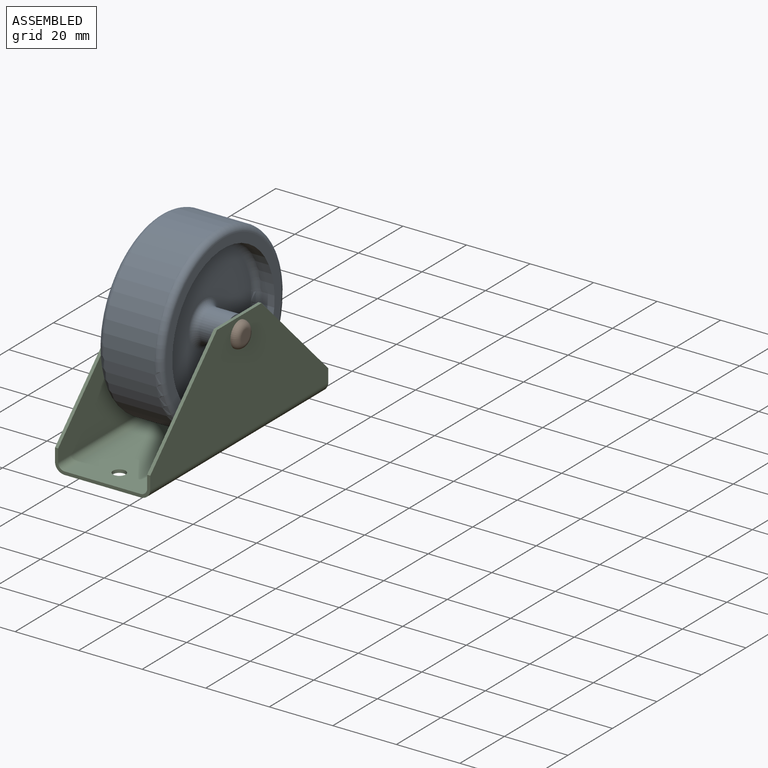
[diagram: assembled view]
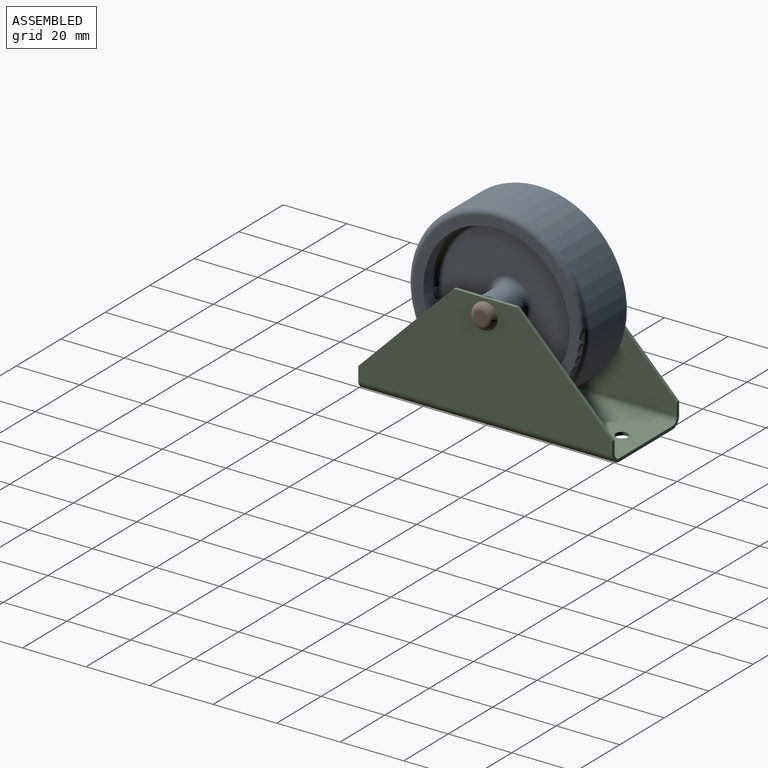
[diagram: assembled view, second angle]
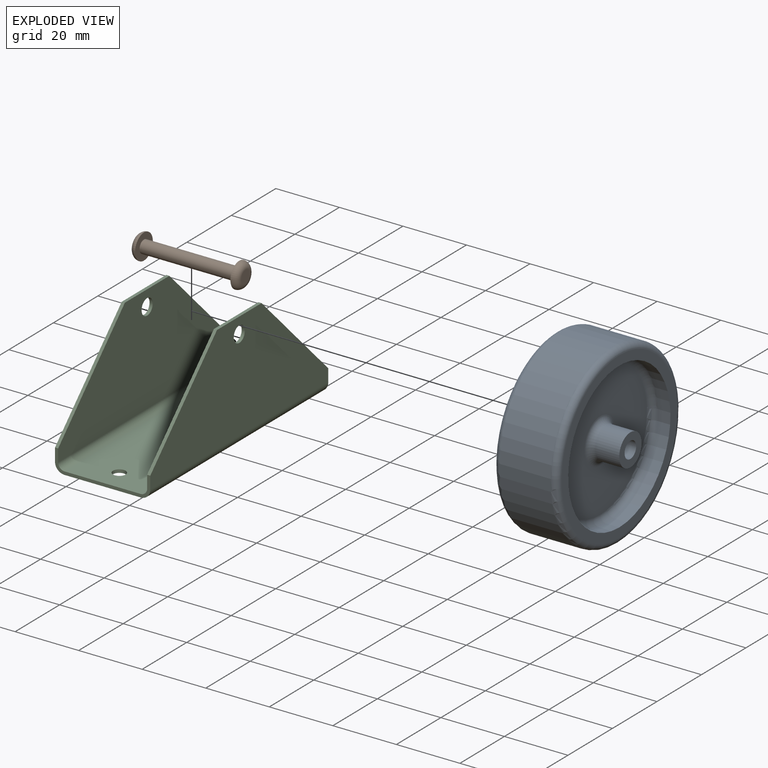
[diagram: exploded view]
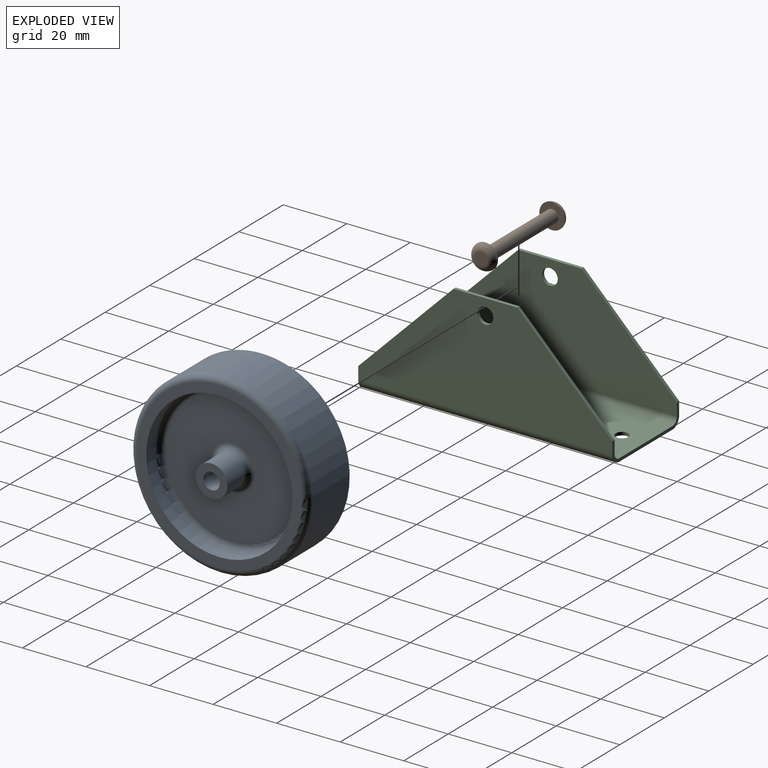
[diagram: exploded view, second angle]
ASSEMBLY  parts=3 mates=2
PART A: 18 faces, bbox 27x60.6x60.6 mm
  f0: cylinder r=28mm len=56mm, axis (1,0,0), area 2814.9mm2, adj f1,f16
  f1: torus R=26mm, axis (1,0,0), area 538.4mm2, adj f0,f2
  f2: plane 52x52mm, normal (-1,0,0), area 461.8mm2, adj f1,f3
  f3: cylinder r=23mm len=46mm, axis (1,0,0), area 578.1mm2, adj f2,f4
  f4: torus R=21mm, axis (1,0,0), area 439.7mm2, adj f3,f5
  f5: plane 42x42mm, normal (-1,0,0), area 1231.5mm2, adj f4,f6
  f6: torus R=7mm, axis (1,0,0), area 113mm2, adj f5,f7
  f7: cylinder r=5mm len=10mm, axis (1,0,0), area 235.6mm2, adj f6,f8
  f8: plane 10x10mm, normal (-1,0,0), area 57.3mm2, adj f7,f17
  f9: plane 10x10mm, normal (1,0,0), area 57.3mm2, adj f10,f17
  f10: cylinder r=5mm len=10mm, axis (1,0,0), area 235.6mm2, adj f9,f11
  f11: torus R=7mm, axis (1,0,0), area 113mm2, adj f10,f12
  f12: plane 42x42mm, normal (1,0,0), area 1231.5mm2, adj f11,f13
  f13: torus R=21mm, axis (1,0,0), area 439.7mm2, adj f12,f14
  f14: cylinder r=23mm len=46mm, axis (1,0,0), area 578.1mm2, adj f13,f15
  f15: plane 52x52mm, normal (1,0,0), area 461.8mm2, adj f14,f16
  f16: torus R=26mm, axis (1,0,0), area 538.4mm2, adj f0,f15
  f17: cylinder r=2.6mm len=27mm, axis (1,0,0), area 441.1mm2, adj f8,f9
PART B: 7 faces, bbox 34x8.7x8.7 mm
  f0: plane 8x8mm, normal (1,0,0), area 37.7mm2, adj f1,f6
  f1: torus R=2mm, axis (-1,0,0), area 64.6mm2, adj f0,f2
  f2: plane 4x4mm, normal (-1,0,0), area 12.6mm2, adj f1
  f3: plane 4x4mm, normal (1,0,0), area 12.6mm2, adj f4
  f4: torus R=2mm, axis (-1,0,0), area 64.6mm2, adj f3,f5
  f5: plane 8x8mm, normal (-1,0,0), area 37.7mm2, adj f4,f6
  f6: cylinder r=2mm len=30mm, axis (-1,0,0), area 377mm2, adj f0,f5
PART C: 30 faces, bbox 30x80x37 mm
  f0: plane 4x1mm, normal (0,1,0), area 4mm2, adj f4,f5,f7,f27
  f1: plane 4x1mm, normal (0,-1,0), area 4mm2, adj f4,f5,f6,f26
  f2: cylinder r=2.5mm len=5mm, axis (1,0,0), area 15.7mm2, adj f4,f5
  f3: plane 20x1mm, normal (0,0,-1), area 20mm2, adj f4,f5,f6,f7
  f4: plane 80x34mm, normal (1,0,0), area 1800.4mm2, adj f0,f1,f2,f3,f6,f7,f29
  f5: plane 80x34mm, normal (-1,0,0), area 1800.4mm2, adj f0,f1,f2,f3,f6,f7,f28
  f6: plane 30x30mm, normal (0,-0.71,-0.71), area 42.4mm2, adj f1,f3,f4,f5
  f7: plane 30x30mm, normal (0,0.71,-0.71), area 42.4mm2, adj f0,f3,f4,f5
  f8: plane 24x1mm, normal (0,1,0), area 24mm2, adj f12,f13,f23,f27
  f9: plane 24x1mm, normal (0,-1,0), area 24mm2, adj f12,f13,f22,f26
  f10: cylinder r=2mm len=4mm, axis (0,0,-1), area 12.6mm2, adj f12,f13
  f11: cylinder r=2mm len=4mm, axis (0,0,-1), area 12.6mm2, adj f12,f13
  f12: plane 80x24mm, normal (0,0,-1), area 1894.9mm2, adj f8,f9,f10,f11,f25,f29
  f13: plane 80x24mm, normal (0,0,1), area 1894.9mm2, adj f8,f9,f10,f11,f24,f28
  f14: plane 4x1mm, normal (0,1,0), area 4mm2, adj f18,f19,f20,f23
  f15: plane 20x1mm, normal (0,0,-1), area 20mm2, adj f18,f19,f20,f21
  f16: plane 4x1mm, normal (0,-1,0), area 4mm2, adj f18,f19,f21,f22
  f17: cylinder r=2.5mm len=5mm, axis (-1,0,0), area 15.7mm2, adj f18,f19
  f18: plane 80x34mm, normal (-1,0,0), area 1800.4mm2, adj f14,f15,f16,f17,f20,f21,f25
  f19: plane 80x34mm, normal (1,0,0), area 1800.4mm2, adj f14,f15,f16,f17,f20,f21,f24
  f20: plane 30x30mm, normal (0,0.71,-0.71), area 42.4mm2, adj f14,f15,f18,f19
  f21: plane 30x30mm, normal (0,-0.71,-0.71), area 42.4mm2, adj f15,f16,f18,f19
  f22: plane 3x3mm, normal (0,-1,0), area 3.9mm2, adj f9,f16,f24,f25
  f23: plane 3x3mm, normal (0,1,0), area 3.9mm2, adj f8,f14,f24,f25
  f24: cylinder r=3mm len=80mm, axis (0,-1,0), area 377mm2, adj f13,f19,f22,f23
  f25: cylinder r=2mm len=80mm, axis (0,-1,0), area 251.3mm2, adj f12,f18,f22,f23
  f26: plane 3x3mm, normal (0,-1,0), area 3.9mm2, adj f1,f9,f28,f29
  f27: plane 3x3mm, normal (0,1,0), area 3.9mm2, adj f0,f8,f28,f29
  f28: cylinder r=3mm len=80mm, axis (0,-1,0), area 377mm2, adj f5,f13,f26,f27
  f29: cylinder r=2mm len=80mm, axis (0,-1,0), area 251.3mm2, adj f4,f12,f26,f27
PLACE A t=(-50.45,-37.16,-10.45)mm
PLACE B t=(-50.45,-37.16,-10.45)mm
PLACE C rot(axis=(0,-1,0),180deg) t=(-50.45,-37.16,-74.45)mm
MATE revolute C.f2 <-> B.f1  axis (-1,0,0) through (-65.45,-37.16,-42.45)mm
MATE revolute B.f1 <-> A.f0  axis (-1,0,0) through (-50.45,-37.16,-42.45)mm
